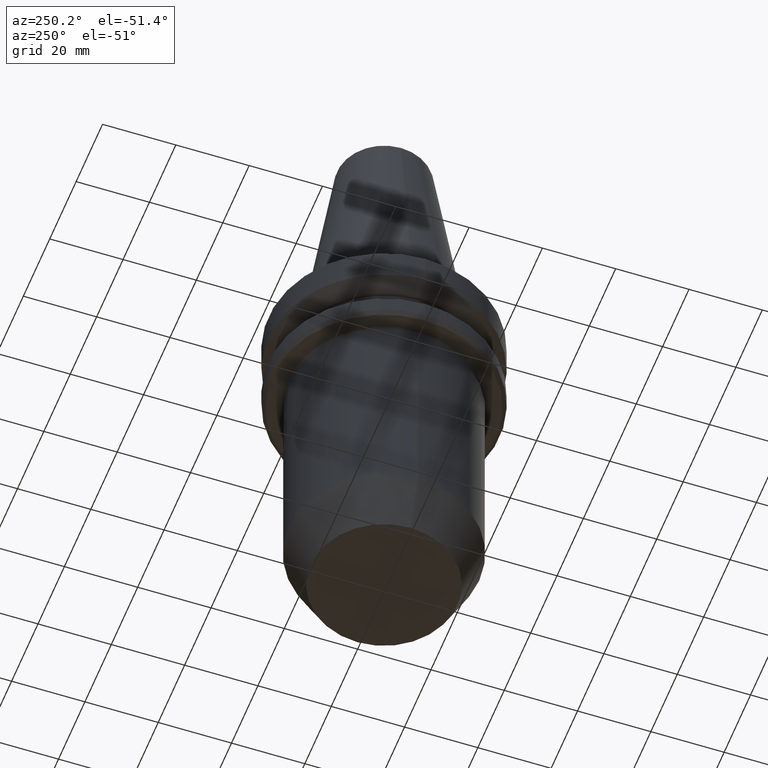
[diagram: clean part render]
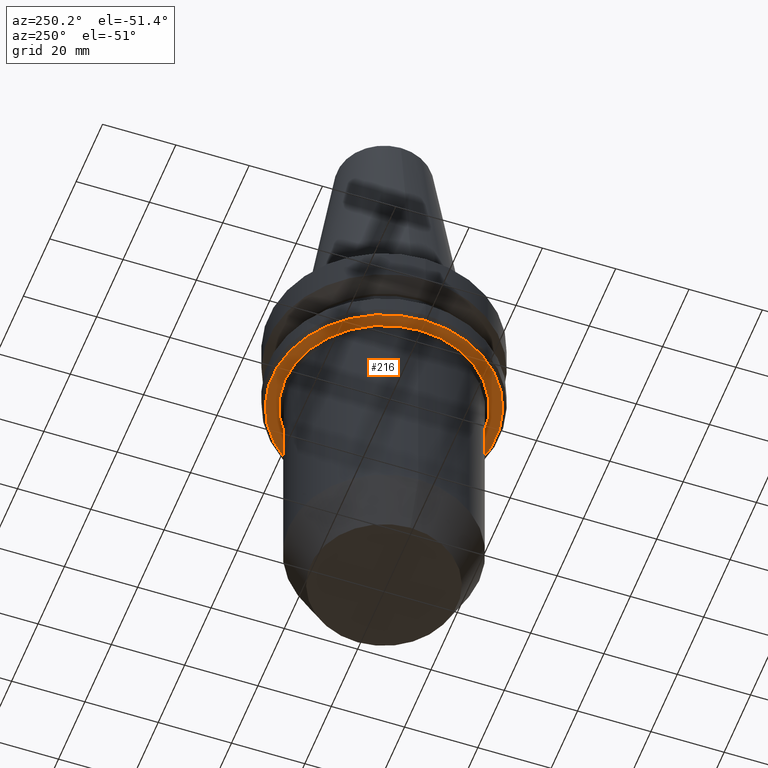
[diagram: same view with one face highlighted and labeled with its STEP entity id]
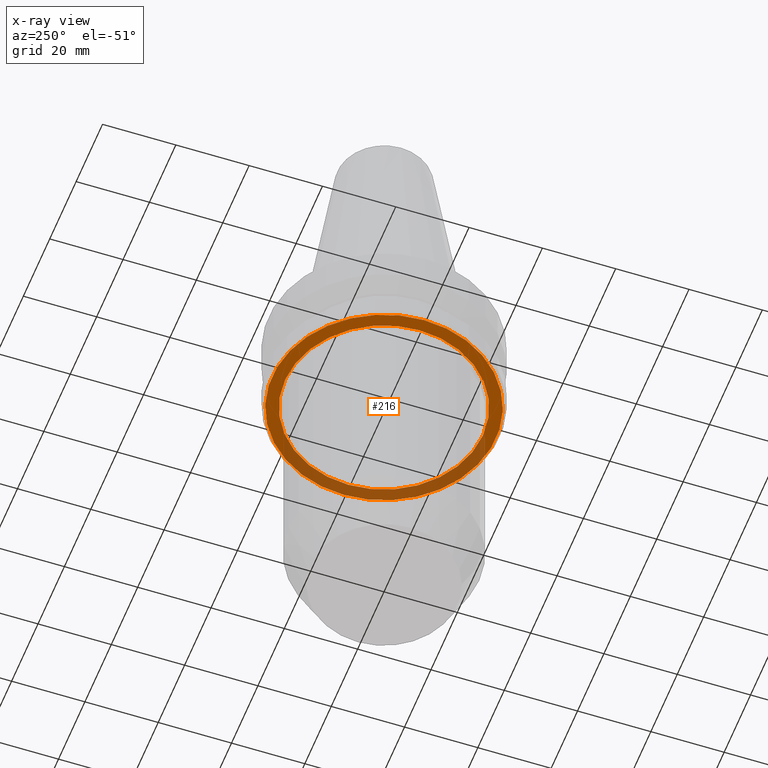
[diagram: x-ray of the same camera — body ghosted, the highlighted face saturated]
A machine part, auxiliary view. The second image highlights one B-rep face of the part: STEP entity #216.
The next image is the same camera in x-ray: the body ghosted, the highlighted face saturated — about 36% of this face is hidden behind the body in this view.
In plain terms, the highlighted planar face has unit normal (0, -0, 1).
Its self-contained STEP definition (entity closure, byte-faithful):
#22 = ORIENTED_EDGE ( 'NONE', *, *, #954, .T. ) ;
#63 = DIRECTION ( 'NONE',  ( -0.0000000000000000000, -0.0000000000000000000, 1.000000000000000000 ) ) ;
#79 = ORIENTED_EDGE ( 'NONE', *, *, #789, .F. ) ;
#83 = CIRCLE ( 'NONE', #512, 27.00000000000000000 ) ;
#84 = DIRECTION ( 'NONE',  ( -0.0000000000000000000, -0.0000000000000000000, 1.000000000000000000 ) ) ;
#101 = EDGE_LOOP ( 'NONE', ( #22, #657 ) ) ;
#135 = CARTESIAN_POINT ( 'NONE',  ( 0.0000000000000000000, 0.0000000000000000000, -26.31128678844368800 ) ) ;
#163 = DIRECTION ( 'NONE',  ( 1.000000000000000000, 0.0000000000000000000, 0.0000000000000000000 ) ) ;
#200 = ORIENTED_EDGE ( 'NONE', *, *, #401, .F. ) ;
#207 = CARTESIAN_POINT ( 'NONE',  ( -30.49999999999997200, 3.796405077356805400E-015, -26.31128678844368800 ) ) ;
#216 = ADVANCED_FACE ( 'NONE', ( #642, #782 ), #848, .F. ) ;
#241 = CARTESIAN_POINT ( 'NONE',  ( 0.0000000000000000000, 0.0000000000000000000, -26.31128678844368800 ) ) ;
#276 = AXIS2_PLACEMENT_3D ( 'NONE', #135, #84, #767 ) ;
#279 = EDGE_CURVE ( 'NONE', #589, #310, #624, .T. ) ;
#310 = VERTEX_POINT ( 'NONE', #792 ) ;
#318 = AXIS2_PLACEMENT_3D ( 'NONE', #503, #897, #629 ) ;
#325 = VERTEX_POINT ( 'NONE', #207 ) ;
#401 = EDGE_CURVE ( 'NONE', #325, #827, #418, .T. ) ;
#418 = CIRCLE ( 'NONE', #667, 30.49999999999997200 ) ;
#420 = EDGE_LOOP ( 'NONE', ( #79, #200 ) ) ;
#460 = DIRECTION ( 'NONE',  ( 1.000000000000000000, 0.0000000000000000000, 0.0000000000000000000 ) ) ;
#467 = AXIS2_PLACEMENT_3D ( 'NONE', #641, #63, #460 ) ;
#503 = CARTESIAN_POINT ( 'NONE',  ( 0.0000000000000000000, 30.49999999999997200, -26.31128678844368800 ) ) ;
#512 = AXIS2_PLACEMENT_3D ( 'NONE', #609, #601, #614 ) ;
#589 = VERTEX_POINT ( 'NONE', #968 ) ;
#601 = DIRECTION ( 'NONE',  ( -0.0000000000000000000, -0.0000000000000000000, 1.000000000000000000 ) ) ;
#609 = CARTESIAN_POINT ( 'NONE',  ( 0.0000000000000000000, 0.0000000000000000000, -26.31128678844368800 ) ) ;
#614 = DIRECTION ( 'NONE',  ( 1.000000000000000000, 0.0000000000000000000, 0.0000000000000000000 ) ) ;
#624 = CIRCLE ( 'NONE', #467, 27.00000000000000000 ) ;
#629 = DIRECTION ( 'NONE',  ( 1.000000000000000000, 0.0000000000000000000, 0.0000000000000000000 ) ) ;
#641 = CARTESIAN_POINT ( 'NONE',  ( 0.0000000000000000000, 0.0000000000000000000, -26.31128678844368800 ) ) ;
#642 = FACE_OUTER_BOUND ( 'NONE', #420, .T. ) ;
#657 = ORIENTED_EDGE ( 'NONE', *, *, #279, .T. ) ;
#667 = AXIS2_PLACEMENT_3D ( 'NONE', #241, #1000, #163 ) ;
#730 = CARTESIAN_POINT ( 'NONE',  ( 30.49999999999997200, 0.0000000000000000000, -26.31128678844368800 ) ) ;
#767 = DIRECTION ( 'NONE',  ( 1.000000000000000000, 0.0000000000000000000, 0.0000000000000000000 ) ) ;
#782 = FACE_BOUND ( 'NONE', #101, .T. ) ;
#789 = EDGE_CURVE ( 'NONE', #827, #325, #1036, .T. ) ;
#792 = CARTESIAN_POINT ( 'NONE',  ( 27.00000000000000000, 0.0000000000000000000, -26.31128678844368800 ) ) ;
#827 = VERTEX_POINT ( 'NONE', #730 ) ;
#848 = PLANE ( 'NONE',  #318 ) ;
#897 = DIRECTION ( 'NONE',  ( 0.0000000000000000000, -0.0000000000000000000, 1.000000000000000000 ) ) ;
#954 = EDGE_CURVE ( 'NONE', #310, #589, #83, .T. ) ;
#968 = CARTESIAN_POINT ( 'NONE',  ( -27.00000000000000000, 3.306546357697854100E-015, -26.31128678844368800 ) ) ;
#1000 = DIRECTION ( 'NONE',  ( -0.0000000000000000000, -0.0000000000000000000, 1.000000000000000000 ) ) ;
#1036 = CIRCLE ( 'NONE', #276, 30.49999999999997200 ) ;